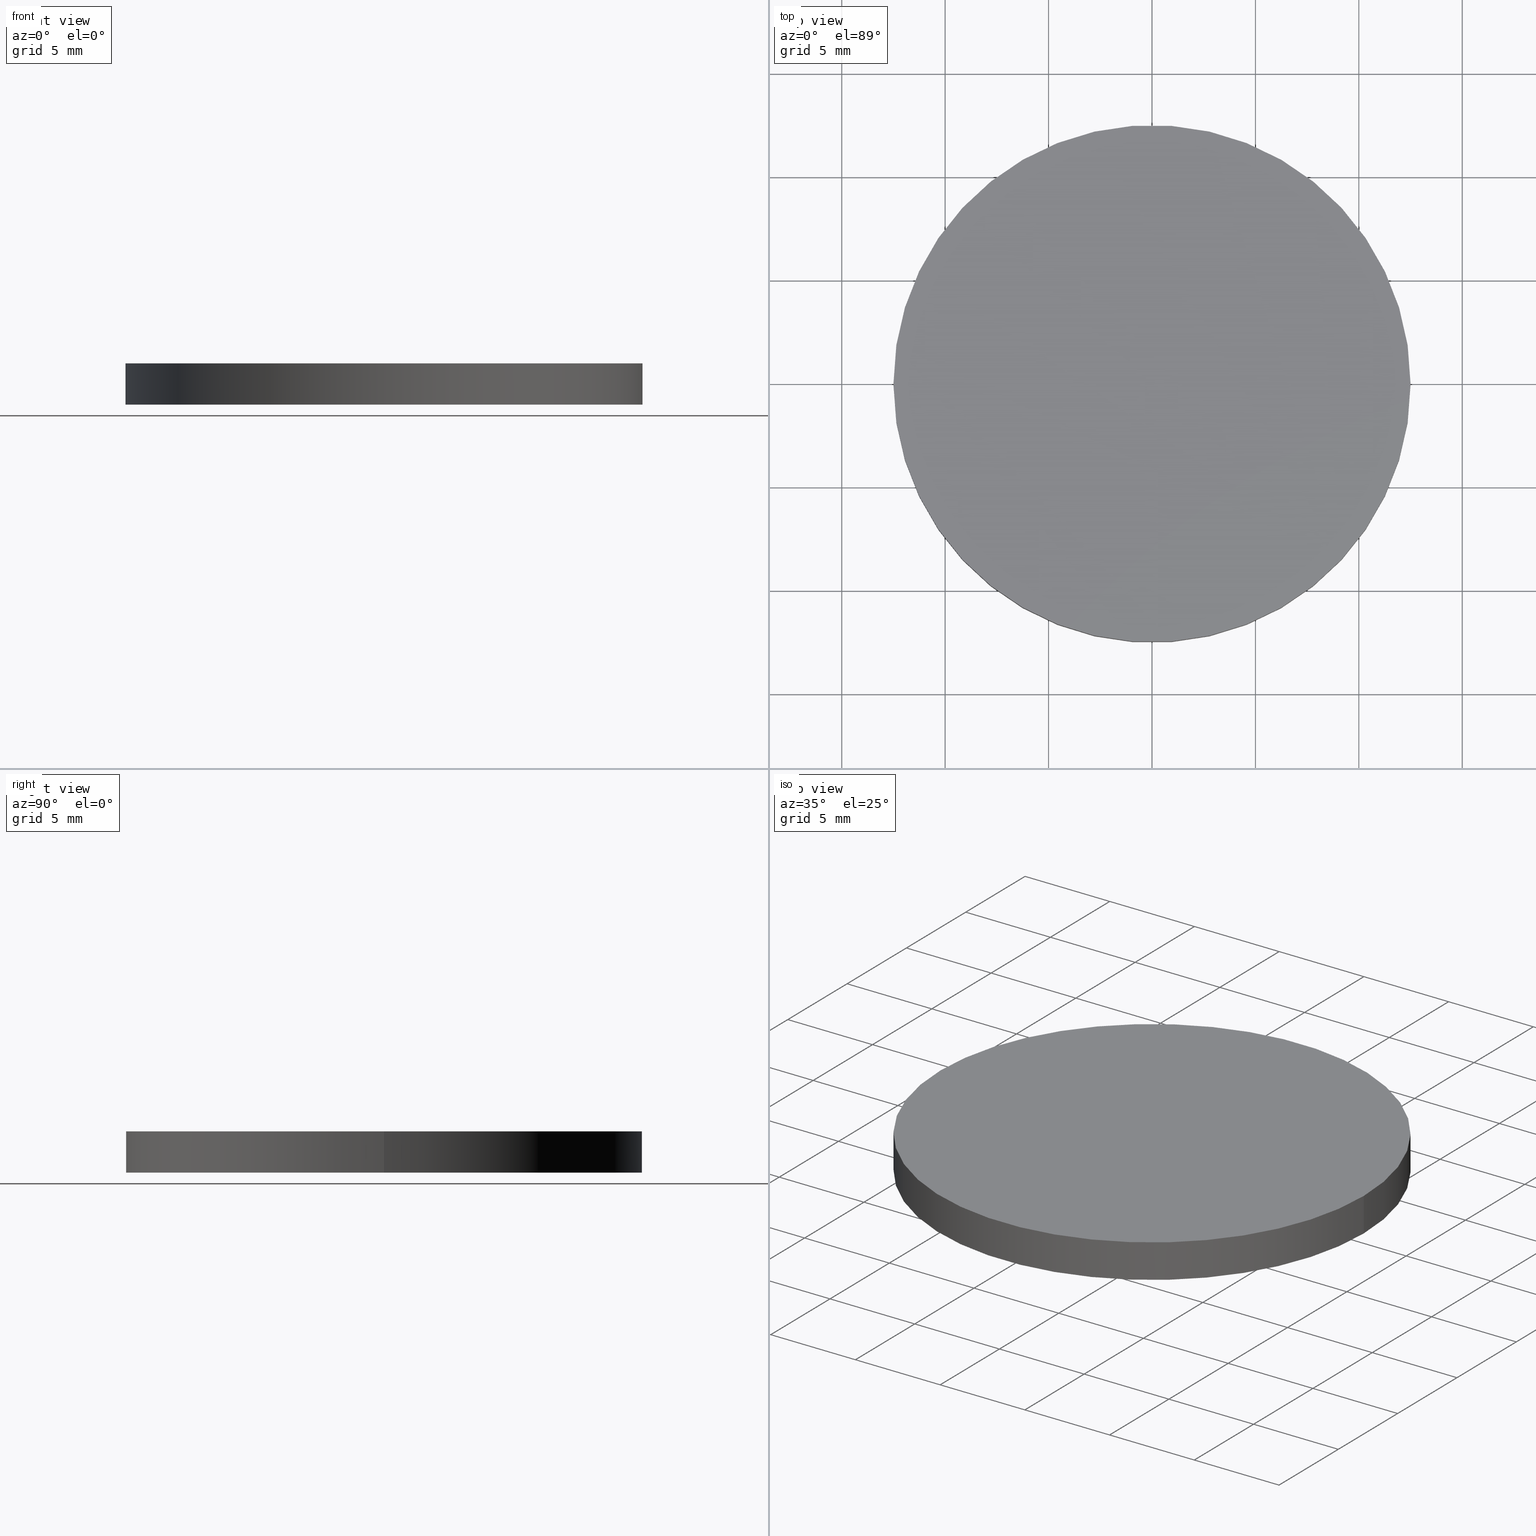
[diagram: canonical four-view strip — front | top / right | iso, engineering-drawing reading convention]
A machine part, canonical four-view strip (front | top / right | iso — engineering-drawing reading convention). The complete STEP part file that produces these views, byte-faithful:
ISO-10303-21;
HEADER;
FILE_DESCRIPTION (( 'STEP AP203' ),
    '1' );
FILE_NAME ('199448.STEP',
    '2020-03-05T07:13:00',
    ( '' ),
    ( '' ),
    'SwSTEP 2.0',
    'SolidWorks 2019',
    '' );
FILE_SCHEMA (( 'CONFIG_CONTROL_DESIGN' ));
ENDSEC;

DATA;
#1 = CIRCLE ( 'NONE', #153, 12.50000000000000533 ) ;
#2 = DIRECTION ( 'NONE',  ( -0.0000000000000000000, -0.0000000000000000000, -1.000000000000000000 ) ) ;
#3 = CARTESIAN_POINT ( 'NONE',  ( 0.0000000000000000000, 0.0000000000000000000, 0.0000000000000000000 ) ) ;
#4 = EDGE_CURVE ( 'NONE', #171, #72, #131, .T. ) ;
#5 = APPLICATION_PROTOCOL_DEFINITION ( 'international standard', 'config_control_design', 1994, #143 ) ;
#6 = CARTESIAN_POINT ( 'NONE',  ( 12.50000000000000533, 1.530808498934192113E-15, 2.000000000000000000 ) ) ;
#7 = PERSON_AND_ORGANIZATION ( #123, #26 ) ;
#8 = AXIS2_PLACEMENT_3D ( 'NONE', #99, #154, #130 ) ;
#9 = APPLICATION_CONTEXT ( 'configuration controlled 3d designs of mechanical parts and assemblies' ) ;
#10 = PLANE ( 'NONE',  #121 ) ;
#11 = CARTESIAN_POINT ( 'NONE',  ( 0.0000000000000000000, 0.0000000000000000000, 0.0000000000000000000 ) ) ;
#12 = AXIS2_PLACEMENT_3D ( 'NONE', #86, #147, #79 ) ;
#13 = CARTESIAN_POINT ( 'NONE',  ( 0.0000000000000000000, 0.0000000000000000000, 2.000000000000000000 ) ) ;
#14 = APPROVAL ( #114, 'δָ��' ) ;
#15 = CALENDAR_DATE ( 2020, 5, 3 ) ;
#16 = ORIENTED_EDGE ( 'NONE', *, *, #4, .F. ) ;
#17 = CALENDAR_DATE ( 2020, 5, 3 ) ;
#18 = APPROVAL_STATUS ( 'not_yet_approved' ) ;
#19 = DATE_TIME_ROLE ( 'creation_date' ) ;
#20 = ORIENTED_EDGE ( 'NONE', *, *, #175, .F. ) ;
#21 = VERTEX_POINT ( 'NONE', #43 ) ;
#22 = DIRECTION ( 'NONE',  ( 0.0000000000000000000, 0.0000000000000000000, 1.000000000000000000 ) ) ;
#23 = CARTESIAN_POINT ( 'NONE',  ( 0.0000000000000000000, 0.0000000000000000000, 2.000000000000000000 ) ) ;
#24 = DIRECTION ( 'NONE',  ( 0.0000000000000000000, 0.0000000000000000000, 1.000000000000000000 ) ) ;
#25 = DIRECTION ( 'NONE',  ( 1.000000000000000000, 0.0000000000000000000, -0.0000000000000000000 ) ) ;
#26 = ORGANIZATION ( 'δָ��', 'δָ��', '' ) ;
#27 = EDGE_CURVE ( 'NONE', #21, #117, #100, .T. ) ;
#28 = COORDINATED_UNIVERSAL_TIME_OFFSET ( 8, 0, .AHEAD. ) ;
#29 = CC_DESIGN_APPROVAL ( #62, ( #39 ) ) ;
#30 = COORDINATED_UNIVERSAL_TIME_OFFSET ( 8, 0, .AHEAD. ) ;
#31 = SECURITY_CLASSIFICATION ( '', '', #33 ) ;
#32 = DIRECTION ( 'NONE',  ( -0.0000000000000000000, -0.0000000000000000000, -1.000000000000000000 ) ) ;
#33 = SECURITY_CLASSIFICATION_LEVEL ( 'unclassified' ) ;
#34 = AXIS2_PLACEMENT_3D ( 'NONE', #164, #38, #142 ) ;
#35 = ORIENTED_EDGE ( 'NONE', *, *, #27, .T. ) ;
#36 = CARTESIAN_POINT ( 'NONE',  ( 0.0000000000000000000, 0.0000000000000000000, 2.000000000000000000 ) ) ;
#37 = FACE_OUTER_BOUND ( 'NONE', #161, .T. ) ;
#38 = DIRECTION ( 'NONE',  ( 0.0000000000000000000, 0.0000000000000000000, 1.000000000000000000 ) ) ;
#39 = PRODUCT_DEFINITION ( 'δ֪', '', #144, #88 ) ;
#40 = EDGE_CURVE ( 'NONE', #171, #21, #95, .T. ) ;
#41 = PERSON_AND_ORGANIZATION ( #123, #26 ) ;
#42 = DATE_TIME_ROLE ( 'classification_date' ) ;
#43 = CARTESIAN_POINT ( 'NONE',  ( -12.50000000000000533, 0.0000000000000000000, 2.000000000000000000 ) ) ;
#44 = PERSON_AND_ORGANIZATION ( #123, #26 ) ;
#45 = CC_DESIGN_DATE_AND_TIME_ASSIGNMENT ( #82, #19, ( #39 ) ) ;
#46 = AXIS2_PLACEMENT_3D ( 'NONE', #36, #90, #148 ) ;
#47 = ORIENTED_EDGE ( 'NONE', *, *, #40, .F. ) ;
#48 = ORIENTED_EDGE ( 'NONE', *, *, #58, .F. ) ;
#49 = LOCAL_TIME ( 15, 13, 0.0000000000000000000, #68 ) ;
#50 = AXIS2_PLACEMENT_3D ( 'NONE', #11, #22, #77 ) ;
#51 = LOCAL_TIME ( 15, 13, 0.0000000000000000000, #28 ) ;
#52 = DATE_AND_TIME ( #15, #124 ) ;
#53 = PERSON_AND_ORGANIZATION_ROLE ( 'design_owner' ) ;
#54 = DATE_AND_TIME ( #17, #108 ) ;
#55 = APPROVAL_STATUS ( 'not_yet_approved' ) ;
#56 = APPROVAL_PERSON_ORGANIZATION ( #132, #14, #155 ) ;
#57 = EDGE_LOOP ( 'NONE', ( #16, #48, #35, #116 ) ) ;
#58 = EDGE_CURVE ( 'NONE', #21, #171, #110, .T. ) ;
#59 =( LENGTH_UNIT ( ) NAMED_UNIT ( * ) SI_UNIT ( .MILLI., .METRE. ) );
#60 = CARTESIAN_POINT ( 'NONE',  ( -12.50000000000000533, 0.0000000000000000000, 0.0000000000000000000 ) ) ;
#61 = AXIS2_PLACEMENT_3D ( 'NONE', #13, #2, #151 ) ;
#62 = APPROVAL ( #18, 'δָ��' ) ;
#63 = CC_DESIGN_SECURITY_CLASSIFICATION ( #31, ( #144 ) ) ;
#64 = DIRECTION ( 'NONE',  ( 0.0000000000000000000, 0.0000000000000000000, 1.000000000000000000 ) ) ;
#65 = PRODUCT ( '199448', '199448', '', ( #127 ) ) ;
#66 = PRODUCT_RELATED_PRODUCT_CATEGORY ( 'detail', '', ( #65 ) ) ;
#67 = EDGE_LOOP ( 'NONE', ( #103, #20 ) ) ;
#68 = COORDINATED_UNIVERSAL_TIME_OFFSET ( 8, 0, .AHEAD. ) ;
#69 = APPROVAL ( #55, 'δָ��' ) ;
#70 = APPROVAL_DATE_TIME ( #52, #62 ) ;
#71 = CIRCLE ( 'NONE', #50, 12.50000000000000533 ) ;
#72 = VERTEX_POINT ( 'NONE', #149 ) ;
#73 = PERSON_AND_ORGANIZATION_ROLE ( 'classification_officer' ) ;
#74 = ORIENTED_EDGE ( 'NONE', *, *, #40, .T. ) ;
#75 = ORIENTED_EDGE ( 'NONE', *, *, #4, .T. ) ;
#76 = MANIFOLD_SOLID_BREP ( '͹̨-����1', #102 ) ;
#77 = DIRECTION ( 'NONE',  ( 1.000000000000000000, 0.0000000000000000000, 0.0000000000000000000 ) ) ;
#78 = CYLINDRICAL_SURFACE ( 'NONE', #61, 12.50000000000000533 ) ;
#79 = DIRECTION ( 'NONE',  ( 1.000000000000000000, 0.0000000000000000000, 0.0000000000000000000 ) ) ;
#80 = PRODUCT_DEFINITION_SHAPE ( 'NONE', 'NONE',  #39 ) ;
#81 = ADVANCED_FACE ( 'NONE', ( #139 ), #122, .T. ) ;
#82 = DATE_AND_TIME ( #111, #150 ) ;
#83 = CC_DESIGN_PERSON_AND_ORGANIZATION_ASSIGNMENT ( #101, #98, ( #144 ) ) ;
#84 = CALENDAR_DATE ( 2020, 5, 3 ) ;
#85 = PERSON_AND_ORGANIZATION_ROLE ( 'creator' ) ;
#86 = CARTESIAN_POINT ( 'NONE',  ( 0.0000000000000000000, 0.0000000000000000000, 2.000000000000000000 ) ) ;
#87 = PERSON_AND_ORGANIZATION ( #123, #26 ) ;
#88 = DESIGN_CONTEXT ( 'detailed design', #9, 'design' ) ;
#89 = VECTOR ( 'NONE', #32, 1000.000000000000000 ) ;
#90 = DIRECTION ( 'NONE',  ( 0.0000000000000000000, 0.0000000000000000000, 1.000000000000000000 ) ) ;
#91 = PLANE ( 'NONE',  #46 ) ;
#92 = APPROVAL_PERSON_ORGANIZATION ( #157, #62, #170 ) ;
#93 = FACE_OUTER_BOUND ( 'NONE', #57, .T. ) ;
#94 = CC_DESIGN_APPROVAL ( #14, ( #144 ) ) ;
#95 = CIRCLE ( 'NONE', #12, 12.50000000000000533 ) ;
#96 = SHAPE_DEFINITION_REPRESENTATION ( #80, #107 ) ;
#97 = PERSON_AND_ORGANIZATION ( #123, #26 ) ;
#98 = PERSON_AND_ORGANIZATION_ROLE ( 'creator' ) ;
#99 = CARTESIAN_POINT ( 'NONE',  ( 0.0000000000000000000, 0.0000000000000000000, 0.0000000000000000000 ) ) ;
#100 = LINE ( 'NONE', #158, #89 ) ;
#101 = PERSON_AND_ORGANIZATION ( #123, #26 ) ;
#102 = CLOSED_SHELL ( 'NONE', ( #81, #135, #109, #165 ) ) ;
#103 = ORIENTED_EDGE ( 'NONE', *, *, #168, .F. ) ;
#104 = ORIENTED_EDGE ( 'NONE', *, *, #27, .F. ) ;
#105 = CARTESIAN_POINT ( 'NONE',  ( 0.0000000000000000000, 0.0000000000000000000, 0.0000000000000000000 ) ) ;
#106 = DIRECTION ( 'NONE',  ( 1.000000000000000000, 0.0000000000000000000, 0.0000000000000000000 ) ) ;
#107 = ADVANCED_BREP_SHAPE_REPRESENTATION ( '199448', ( #76, #8 ), #126 ) ;
#108 = LOCAL_TIME ( 15, 13, 0.0000000000000000000, #172 ) ;
#109 = ADVANCED_FACE ( 'NONE', ( #37 ), #91, .T. ) ;
#110 = CIRCLE ( 'NONE', #34, 12.50000000000000533 ) ;
#111 = CALENDAR_DATE ( 2020, 5, 3 ) ;
#112 = CC_DESIGN_PERSON_AND_ORGANIZATION_ASSIGNMENT ( #41, #85, ( #39 ) ) ;
#113 = APPLICATION_PROTOCOL_DEFINITION ( 'international standard', 'config_control_design', 1994, #9 ) ;
#114 = APPROVAL_STATUS ( 'not_yet_approved' ) ;
#115 = APPROVAL_ROLE ( '' ) ;
#116 = ORIENTED_EDGE ( 'NONE', *, *, #168, .T. ) ;
#117 = VERTEX_POINT ( 'NONE', #60 ) ;
#118 = APPROVAL_PERSON_ORGANIZATION ( #7, #69, #115 ) ;
#119 = CARTESIAN_POINT ( 'NONE',  ( 12.50000000000000533, 1.530808498934192113E-15, 2.000000000000000000 ) ) ;
#120 = DIRECTION ( 'NONE',  ( -0.0000000000000000000, -0.0000000000000000000, -1.000000000000000000 ) ) ;
#121 = AXIS2_PLACEMENT_3D ( 'NONE', #105, #24, #25 ) ;
#122 = CYLINDRICAL_SURFACE ( 'NONE', #167, 12.50000000000000533 ) ;
#123 = PERSON ( 'δָ��', 'δָ��', 'δָ��', ('δָ��'), ('δָ��'), ('δָ��') ) ;
#124 = LOCAL_TIME ( 15, 13, 0.0000000000000000000, #30 ) ;
#125 = UNCERTAINTY_MEASURE_WITH_UNIT (LENGTH_MEASURE( 1.000000000000000082E-05 ), #59, 'distance_accuracy_value', 'NONE');
#126 =( GEOMETRIC_REPRESENTATION_CONTEXT ( 3 ) GLOBAL_UNCERTAINTY_ASSIGNED_CONTEXT ( ( #125 ) ) GLOBAL_UNIT_ASSIGNED_CONTEXT ( ( #59, #166, #152 ) ) REPRESENTATION_CONTEXT ( 'NONE', 'WORKASPACE' ) );
#127 = MECHANICAL_CONTEXT ( 'NONE', #143, 'mechanical' ) ;
#128 = CC_DESIGN_PERSON_AND_ORGANIZATION_ASSIGNMENT ( #87, #73, ( #31 ) ) ;
#129 = CC_DESIGN_APPROVAL ( #69, ( #31 ) ) ;
#130 = DIRECTION ( 'NONE',  ( 1.000000000000000000, 0.0000000000000000000, 0.0000000000000000000 ) ) ;
#131 = LINE ( 'NONE', #6, #140 ) ;
#132 = PERSON_AND_ORGANIZATION ( #123, #26 ) ;
#133 = DIRECTION ( 'NONE',  ( -0.0000000000000000000, -0.0000000000000000000, -1.000000000000000000 ) ) ;
#134 = DATE_AND_TIME ( #169, #49 ) ;
#135 = ADVANCED_FACE ( 'NONE', ( #93 ), #78, .T. ) ;
#136 = EDGE_LOOP ( 'NONE', ( #47, #75, #162, #104 ) ) ;
#137 = DIRECTION ( 'NONE',  ( -1.000000000000000000, 0.0000000000000000000, 0.0000000000000000000 ) ) ;
#138 = FACE_OUTER_BOUND ( 'NONE', #67, .T. ) ;
#139 = FACE_OUTER_BOUND ( 'NONE', #136, .T. ) ;
#140 = VECTOR ( 'NONE', #133, 1000.000000000000000 ) ;
#141 = CC_DESIGN_PERSON_AND_ORGANIZATION_ASSIGNMENT ( #97, #53, ( #65 ) ) ;
#142 = DIRECTION ( 'NONE',  ( 1.000000000000000000, 0.0000000000000000000, 0.0000000000000000000 ) ) ;
#143 = APPLICATION_CONTEXT ( 'configuration controlled 3d designs of mechanical parts and assemblies' ) ;
#144 = PRODUCT_DEFINITION_FORMATION_WITH_SPECIFIED_SOURCE ( '�κ�', '', #65, .NOT_KNOWN. ) ;
#145 = DATE_AND_TIME ( #84, #51 ) ;
#146 = COORDINATED_UNIVERSAL_TIME_OFFSET ( 8, 0, .AHEAD. ) ;
#147 = DIRECTION ( 'NONE',  ( 0.0000000000000000000, 0.0000000000000000000, 1.000000000000000000 ) ) ;
#148 = DIRECTION ( 'NONE',  ( 1.000000000000000000, 0.0000000000000000000, -0.0000000000000000000 ) ) ;
#149 = CARTESIAN_POINT ( 'NONE',  ( 12.50000000000000533, 1.530808498934192113E-15, 0.0000000000000000000 ) ) ;
#150 = LOCAL_TIME ( 15, 13, 0.0000000000000000000, #146 ) ;
#151 = DIRECTION ( 'NONE',  ( -1.000000000000000000, 0.0000000000000000000, 0.0000000000000000000 ) ) ;
#152 =( NAMED_UNIT ( * ) SI_UNIT ( $, .STERADIAN. ) SOLID_ANGLE_UNIT ( ) );
#153 = AXIS2_PLACEMENT_3D ( 'NONE', #3, #64, #106 ) ;
#154 = DIRECTION ( 'NONE',  ( 0.0000000000000000000, 0.0000000000000000000, 1.000000000000000000 ) ) ;
#155 = APPROVAL_ROLE ( '' ) ;
#156 = APPROVAL_DATE_TIME ( #145, #69 ) ;
#157 = PERSON_AND_ORGANIZATION ( #123, #26 ) ;
#158 = CARTESIAN_POINT ( 'NONE',  ( -12.50000000000000533, 0.0000000000000000000, 2.000000000000000000 ) ) ;
#159 = CC_DESIGN_DATE_AND_TIME_ASSIGNMENT ( #134, #42, ( #31 ) ) ;
#160 = PERSON_AND_ORGANIZATION_ROLE ( 'design_supplier' ) ;
#161 = EDGE_LOOP ( 'NONE', ( #174, #74 ) ) ;
#162 = ORIENTED_EDGE ( 'NONE', *, *, #175, .T. ) ;
#163 = CC_DESIGN_PERSON_AND_ORGANIZATION_ASSIGNMENT ( #44, #160, ( #144 ) ) ;
#164 = CARTESIAN_POINT ( 'NONE',  ( 0.0000000000000000000, 0.0000000000000000000, 2.000000000000000000 ) ) ;
#165 = ADVANCED_FACE ( 'NONE', ( #138 ), #10, .F. ) ;
#166 =( NAMED_UNIT ( * ) PLANE_ANGLE_UNIT ( ) SI_UNIT ( $, .RADIAN. ) );
#167 = AXIS2_PLACEMENT_3D ( 'NONE', #23, #120, #137 ) ;
#168 = EDGE_CURVE ( 'NONE', #117, #72, #1, .T. ) ;
#169 = CALENDAR_DATE ( 2020, 5, 3 ) ;
#170 = APPROVAL_ROLE ( '' ) ;
#171 = VERTEX_POINT ( 'NONE', #119 ) ;
#172 = COORDINATED_UNIVERSAL_TIME_OFFSET ( 8, 0, .AHEAD. ) ;
#173 = APPROVAL_DATE_TIME ( #54, #14 ) ;
#174 = ORIENTED_EDGE ( 'NONE', *, *, #58, .T. ) ;
#175 = EDGE_CURVE ( 'NONE', #72, #117, #71, .T. ) ;
ENDSEC;
END-ISO-10303-21;
